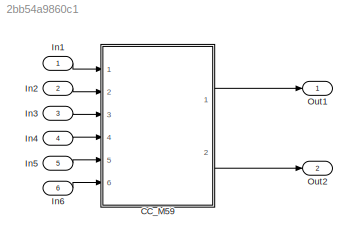
MODEL slx_2bb54a9860c1
KIND model
CONFIG AbsTol = auto
CONFIG EnableMultiTasking = off
CONFIG FixedStep = auto
CONFIG MaxStep = auto
CONFIG MinStep = auto
CONFIG RelTol = 1e-3
CONFIG SampleTimeConstraint = Unconstrained
CONFIG Solver = VariableStepAuto
CONFIG SolverName = VariableStepAuto
CONFIG StartTime = 0.0
CONFIG StopTime = 10.0
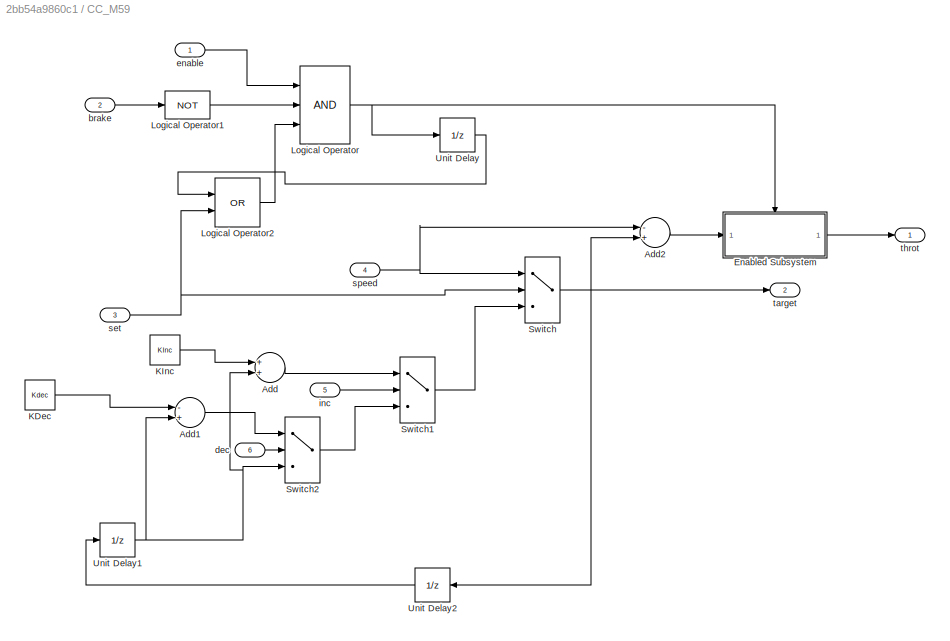
BLOCK [SubSystem] CC_M59
  Ports = [6, 2]
  RequestExecContextInheritance = off
  Variant = off
BLOCK [Sum] CC_M59/Add
  InputSameDT = off
  OutDataTypeStr = Inherit: Inherit via internal rule
  Ports = [2, 1]
  SaturateOnIntegerOverflow = off
BLOCK [Sum] CC_M59/Add1
  InputSameDT = off
  Inputs = -+
  OutDataTypeStr = Inherit: Inherit via internal rule
  Ports = [2, 1]
  SaturateOnIntegerOverflow = off
BLOCK [Sum] CC_M59/Add2
  InputSameDT = off
  Inputs = -+
  OutDataTypeStr = Inherit: Inherit via internal rule
  Ports = [2, 1]
  SaturateOnIntegerOverflow = off
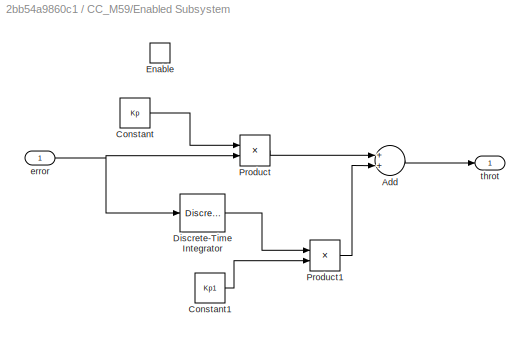
BLOCK [SubSystem] CC_M59/Enabled Subsystem
  Ports = [1, 1, 1]
  RequestExecContextInheritance = off
  TreatAsAtomicUnit = on
  Variant = off
BLOCK [Sum] CC_M59/Enabled Subsystem/Add
  InputSameDT = off
  OutDataTypeStr = Inherit: Inherit via internal rule
  Ports = [2, 1]
  SaturateOnIntegerOverflow = off
BLOCK [Constant] CC_M59/Enabled Subsystem/Constant
  Value = Kp
BLOCK [Constant] CC_M59/Enabled Subsystem/Constant1
  Value = Kp1
BLOCK [DiscreteIntegrator] CC_M59/Enabled Subsystem/Discrete-Time Integrator
  ICPrevOutput = DiscIntNeverNeededParam
  ICPrevScaledInput = DiscIntNeverNeededParam
  Ports = [1, 1]
  gainval = Ki
BLOCK [EnablePort] CC_M59/Enabled Subsystem/Enable
  Ports = []
BLOCK [Product] CC_M59/Enabled Subsystem/Product
  InputSameDT = off
  OutDataTypeStr = Inherit: Inherit via internal rule
  Ports = [2, 1]
  RndMeth = Floor
  SaturateOnIntegerOverflow = off
BLOCK [Product] CC_M59/Enabled Subsystem/Product1
  InputSameDT = off
  OutDataTypeStr = Inherit: Inherit via internal rule
  Ports = [2, 1]
  RndMeth = Floor
  SaturateOnIntegerOverflow = off
BLOCK [Inport] CC_M59/Enabled Subsystem/error
  IconDisplay = Port number
BLOCK [Outport] CC_M59/Enabled Subsystem/throt
  IconDisplay = Port number
BLOCK [Constant] CC_M59/KDec
  Value = Kdec
BLOCK [Constant] CC_M59/KInc
  Value = KInc
BLOCK [Logic] CC_M59/Logical Operator
  AllPortsSameDT = off
  Inputs = 3
  OutDataTypeStr = boolean
  Ports = [3, 1]
BLOCK [Logic] CC_M59/Logical Operator1
  AllPortsSameDT = off
  Inputs = 3
  Operator = NOT
  OutDataTypeStr = boolean
  Ports = [1, 1]
BLOCK [Logic] CC_M59/Logical Operator2
  AllPortsSameDT = off
  Operator = OR
  OutDataTypeStr = boolean
  Ports = [2, 1]
BLOCK [Switch] CC_M59/Switch
  InputSameDT = off
  SaturateOnIntegerOverflow = off
BLOCK [Switch] CC_M59/Switch1
  InputSameDT = off
  SaturateOnIntegerOverflow = off
BLOCK [Switch] CC_M59/Switch2
  InputSameDT = off
  SaturateOnIntegerOverflow = off
BLOCK [UnitDelay] CC_M59/Unit Delay
  InitialCondition = 1
  InputProcessing = Elements as channels (sample based)
  SampleTime = -1
BLOCK [UnitDelay] CC_M59/Unit Delay1
  InputProcessing = Elements as channels (sample based)
  SampleTime = -1
BLOCK [UnitDelay] CC_M59/Unit Delay2
  InitialCondition = 1
  InputProcessing = Elements as channels (sample based)
  SampleTime = -1
BLOCK [Inport] CC_M59/brake
  IconDisplay = Port number
  Port = 2
BLOCK [Inport] CC_M59/dec
  IconDisplay = Port number
  Port = 6
BLOCK [Inport] CC_M59/enable
  IconDisplay = Port number
BLOCK [Inport] CC_M59/inc
  IconDisplay = Port number
  Port = 5
BLOCK [Inport] CC_M59/set
  IconDisplay = Port number
  Port = 3
BLOCK [Inport] CC_M59/speed
  IconDisplay = Port number
  Port = 4
BLOCK [Outport] CC_M59/target
  IconDisplay = Port number
  Port = 2
BLOCK [Outport] CC_M59/throt
  IconDisplay = Port number
BLOCK [Inport] In1
  IconDisplay = Port number
BLOCK [Inport] In2
  IconDisplay = Port number
  Port = 2
BLOCK [Inport] In3
  IconDisplay = Port number
  Port = 3
BLOCK [Inport] In4
  IconDisplay = Port number
  Port = 4
BLOCK [Inport] In5
  IconDisplay = Port number
  Port = 5
BLOCK [Inport] In6
  IconDisplay = Port number
  Port = 6
BLOCK [Outport] Out1
  IconDisplay = Port number
BLOCK [Outport] Out2
  IconDisplay = Port number
  Port = 2
LINE CC_M59/Add1:1 -> CC_M59/Switch2:1
LINE CC_M59/Add2:1 -> CC_M59/Enabled Subsystem:1
LINE CC_M59/Add:1 -> CC_M59/Switch1:1
LINE CC_M59/Enabled Subsystem/Add:1 -> CC_M59/Enabled Subsystem/throt:1
LINE CC_M59/Enabled Subsystem/Constant1:1 -> CC_M59/Enabled Subsystem/Product1:2
LINE CC_M59/Enabled Subsystem/Constant:1 -> CC_M59/Enabled Subsystem/Product:1
LINE CC_M59/Enabled Subsystem/Discrete-Time Integrator:1 -> CC_M59/Enabled Subsystem/Product1:1
LINE CC_M59/Enabled Subsystem/Product1:1 -> CC_M59/Enabled Subsystem/Add:2
LINE CC_M59/Enabled Subsystem/Product:1 -> CC_M59/Enabled Subsystem/Add:1
NET CC_M59/Enabled Subsystem/error:1 -> CC_M59/Enabled Subsystem/Discrete-Time Integrator:1, CC_M59/Enabled Subsystem/Product:2
LINE CC_M59/Enabled Subsystem:1 -> CC_M59/throt:1
LINE CC_M59/KDec:1 -> CC_M59/Add1:1
LINE CC_M59/KInc:1 -> CC_M59/Add:1
LINE CC_M59/Logical Operator1:1 -> CC_M59/Logical Operator:2
LINE CC_M59/Logical Operator2:1 -> CC_M59/Logical Operator:3
NET CC_M59/Logical Operator:1 -> CC_M59/Enabled Subsystem:enable, CC_M59/Unit Delay:1
LINE CC_M59/Switch1:1 -> CC_M59/Switch:3
LINE CC_M59/Switch2:1 -> CC_M59/Switch1:3
NET CC_M59/Switch:1 -> CC_M59/Add2:2, CC_M59/Unit Delay2:1, CC_M59/target:1
NET CC_M59/Unit Delay1:1 -> CC_M59/Add1:2, CC_M59/Add:2, CC_M59/Switch2:3
LINE CC_M59/Unit Delay2:1 -> CC_M59/Unit Delay1:1
LINE CC_M59/Unit Delay:1 -> CC_M59/Logical Operator2:1
LINE CC_M59/brake:1 -> CC_M59/Logical Operator1:1
LINE CC_M59/dec:1 -> CC_M59/Switch2:2
LINE CC_M59/enable:1 -> CC_M59/Logical Operator:1
LINE CC_M59/inc:1 -> CC_M59/Switch1:2
NET CC_M59/set:1 -> CC_M59/Logical Operator2:2, CC_M59/Switch:2
NET CC_M59/speed:1 -> CC_M59/Add2:1, CC_M59/Switch:1
LINE CC_M59:1 -> Out1:1
LINE CC_M59:2 -> Out2:1
LINE In1:1 -> CC_M59:1
LINE In2:1 -> CC_M59:2
LINE In3:1 -> CC_M59:3
LINE In4:1 -> CC_M59:4
LINE In5:1 -> CC_M59:5
LINE In6:1 -> CC_M59:6
note: NET lines group one-source signal fan-out (src -> all destinations, sorted); 1:1 wires keep LINE
